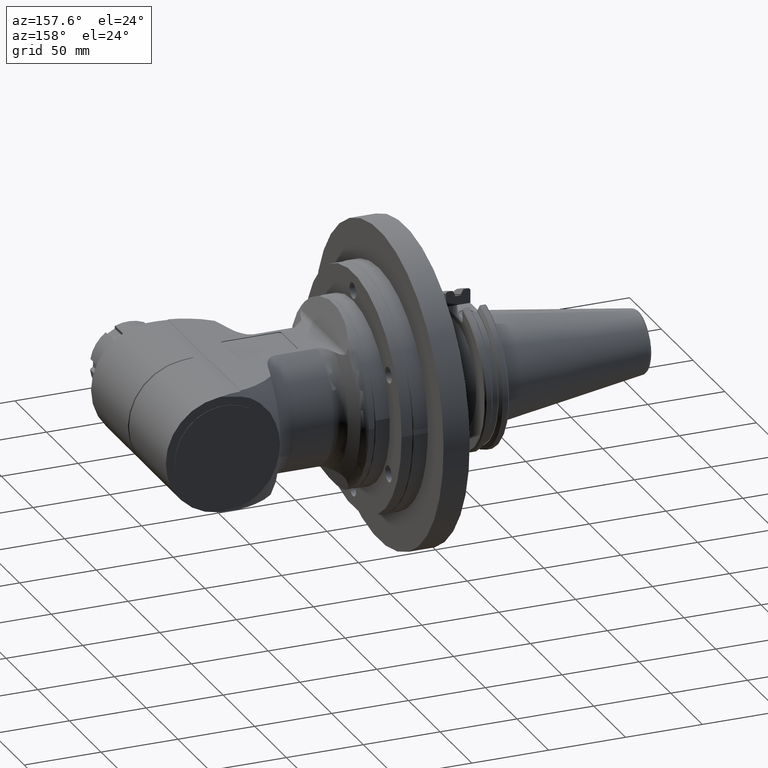
[diagram: clean part render]
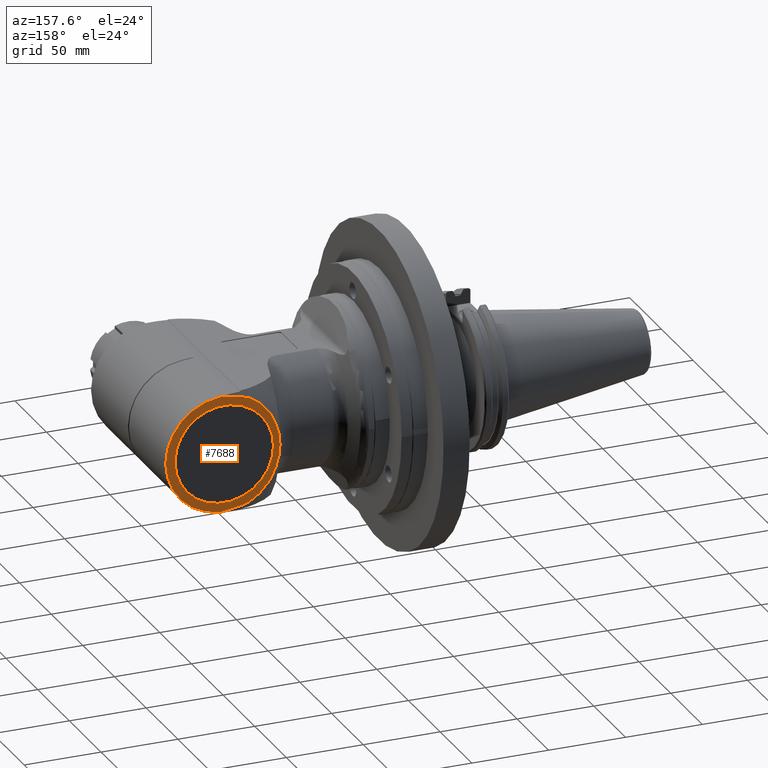
[diagram: same view with one face highlighted and labeled with its STEP entity id]
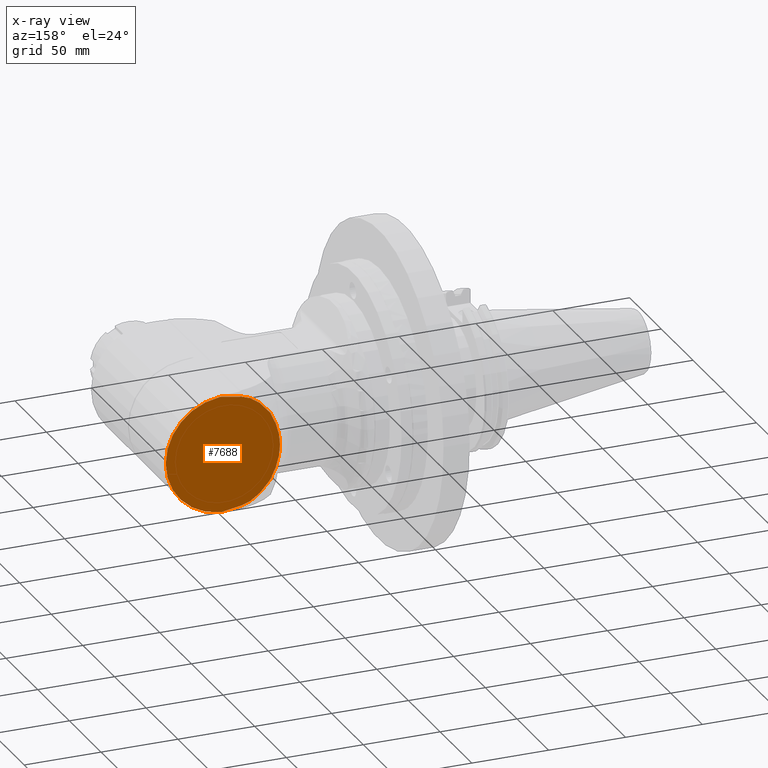
[diagram: x-ray of the same camera — body ghosted, the highlighted face saturated]
A machine part, auxiliary view. The second image highlights one B-rep face of the part: STEP entity #7688.
The next image is the same camera in x-ray: the body ghosted, the highlighted face saturated — about 0% of this face is hidden behind the body in this view.
In plain terms, the highlighted planar face has unit normal (0, -1, -0).
Its self-contained STEP definition (entity closure, byte-faithful):
#546=FACE_OUTER_BOUND('',#964,.T.);
#964=EDGE_LOOP('',(#5692,#5693,#5694,#5695,#5696,#5697,#5698,#5699,#5700,
#5701,#5702,#5703,#5704));
#1458=CIRCLE('',#8314,38.);
#1810=LINE('',#12130,#2419);
#1812=LINE('',#12143,#2421);
#2419=VECTOR('',#9528,10.);
#2421=VECTOR('',#9536,10.);
#2899=(
BOUNDED_CURVE()
B_SPLINE_CURVE(2,(#11565,#11566,#11567),.UNSPECIFIED.,.F.,.F.)
B_SPLINE_CURVE_WITH_KNOTS((3,3),(2.93448085738613,4.30098563059616),
 .UNSPECIFIED.)
CURVE()
GEOMETRIC_REPRESENTATION_ITEM()
RATIONAL_B_SPLINE_CURVE((1.00188573708598,1.00205643421679,1.00197718661706))
REPRESENTATION_ITEM('')
);
#2900=(
BOUNDED_CURVE()
B_SPLINE_CURVE(2,(#11571,#11572,#11573),.UNSPECIFIED.,.F.,.F.)
B_SPLINE_CURVE_WITH_KNOTS((3,3),(2.71811370431364,3.37089348317841),
 .UNSPECIFIED.)
CURVE()
GEOMETRIC_REPRESENTATION_ITEM()
RATIONAL_B_SPLINE_CURVE((1.00705525668742,1.00746944687986,1.0076756583646))
REPRESENTATION_ITEM('')
);
#2935=(
BOUNDED_CURVE()
B_SPLINE_CURVE(2,(#12152,#12153,#12154),.UNSPECIFIED.,.F.,.F.)
B_SPLINE_CURVE_WITH_KNOTS((3,3),(-6.20125849485431,-5.31660579783933),
 .UNSPECIFIED.)
CURVE()
GEOMETRIC_REPRESENTATION_ITEM()
RATIONAL_B_SPLINE_CURVE((1.02211110432321,1.02410051584497,1.02507233728091))
REPRESENTATION_ITEM('')
);
#2936=(
BOUNDED_CURVE()
B_SPLINE_CURVE(2,(#12156,#12157,#12158),.UNSPECIFIED.,.F.,.F.)
B_SPLINE_CURVE_WITH_KNOTS((3,3),(-4.30098563059561,-2.9344808573867),
 .UNSPECIFIED.)
CURVE()
GEOMETRIC_REPRESENTATION_ITEM()
RATIONAL_B_SPLINE_CURVE((1.00197718661707,1.0020564342168,1.00188573708599))
REPRESENTATION_ITEM('')
);
#2937=(
BOUNDED_CURVE()
B_SPLINE_CURVE(2,(#12160,#12161,#12162),.UNSPECIFIED.,.F.,.F.)
B_SPLINE_CURVE_WITH_KNOTS((3,3),(-3.37089348317868,-2.71811370431348),
 .UNSPECIFIED.)
CURVE()
GEOMETRIC_REPRESENTATION_ITEM()
RATIONAL_B_SPLINE_CURVE((1.0076756583646,1.00746944687986,1.00705525668742))
REPRESENTATION_ITEM('')
);
#2938=(
BOUNDED_CURVE()
B_SPLINE_CURVE(2,(#12164,#12165,#12166),.UNSPECIFIED.,.F.,.F.)
B_SPLINE_CURVE_WITH_KNOTS((3,3),(-3.62687932288115,-2.74222662586964),
 .UNSPECIFIED.)
CURVE()
GEOMETRIC_REPRESENTATION_ITEM()
RATIONAL_B_SPLINE_CURVE((1.02507233728091,1.02410051584497,1.02211110432322))
REPRESENTATION_ITEM('')
);
#2939=(
BOUNDED_CURVE()
B_SPLINE_CURVE(2,(#12168,#12169,#12170),.UNSPECIFIED.,.F.,.F.)
B_SPLINE_CURVE_WITH_KNOTS((3,3),(-3.71365839798047,-2.3794494730781),
 .UNSPECIFIED.)
CURVE()
GEOMETRIC_REPRESENTATION_ITEM()
RATIONAL_B_SPLINE_CURVE((1.04614546941561,1.04271614922782,1.03579468905903))
REPRESENTATION_ITEM('')
);
#2940=(
BOUNDED_CURVE()
B_SPLINE_CURVE(2,(#12172,#12173,#12174),.UNSPECIFIED.,.F.,.F.)
B_SPLINE_CURVE_WITH_KNOTS((3,3),(-15.527399004134,-11.5955866176865),
 .UNSPECIFIED.)
CURVE()
GEOMETRIC_REPRESENTATION_ITEM()
RATIONAL_B_SPLINE_CURVE((1.35306260130723,1.39892913016397,1.39892913016397))
REPRESENTATION_ITEM('')
);
#2941=(
BOUNDED_CURVE()
B_SPLINE_CURVE(2,(#12176,#12177,#12178),.UNSPECIFIED.,.F.,.F.)
B_SPLINE_CURVE_WITH_KNOTS((3,3),(-11.5955866176865,-7.66377423123892),
 .UNSPECIFIED.)
CURVE()
GEOMETRIC_REPRESENTATION_ITEM()
RATIONAL_B_SPLINE_CURVE((1.39892913016397,1.39892913016397,1.35306260130723))
REPRESENTATION_ITEM('')
);
#2942=(
BOUNDED_CURVE()
B_SPLINE_CURVE(2,(#12179,#12180,#12181),.UNSPECIFIED.,.F.,.F.)
B_SPLINE_CURVE_WITH_KNOTS((3,3),(-7.66828324306775,-6.33407431816759),
 .UNSPECIFIED.)
CURVE()
GEOMETRIC_REPRESENTATION_ITEM()
RATIONAL_B_SPLINE_CURVE((1.03579468905905,1.04271614922784,1.04614546941562))
REPRESENTATION_ITEM('')
);
#3164=VERTEX_POINT('',#11560);
#3165=VERTEX_POINT('',#11564);
#3166=VERTEX_POINT('',#11570);
#3263=VERTEX_POINT('',#12128);
#3264=VERTEX_POINT('',#12135);
#3265=VERTEX_POINT('',#12139);
#3266=VERTEX_POINT('',#12151);
#3267=VERTEX_POINT('',#12155);
#3268=VERTEX_POINT('',#12159);
#3269=VERTEX_POINT('',#12163);
#3270=VERTEX_POINT('',#12167);
#3271=VERTEX_POINT('',#12171);
#3272=VERTEX_POINT('',#12175);
#4088=EDGE_CURVE('',#3165,#3164,#2899,.T.);
#4090=EDGE_CURVE('',#3166,#3165,#2900,.T.);
#4222=EDGE_CURVE('',#3164,#3263,#1810,.T.);
#4225=EDGE_CURVE('',#3263,#3264,#1458,.T.);
#4227=EDGE_CURVE('',#3264,#3265,#1812,.T.);
#4230=EDGE_CURVE('',#3266,#3166,#2935,.T.);
#4231=EDGE_CURVE('',#3265,#3267,#2936,.T.);
#4232=EDGE_CURVE('',#3267,#3268,#2937,.T.);
#4233=EDGE_CURVE('',#3268,#3269,#2938,.T.);
#4234=EDGE_CURVE('',#3269,#3270,#2939,.T.);
#4235=EDGE_CURVE('',#3270,#3271,#2940,.T.);
#4236=EDGE_CURVE('',#3271,#3272,#2941,.T.);
#4237=EDGE_CURVE('',#3272,#3266,#2942,.T.);
#5692=ORIENTED_EDGE('',*,*,#4230,.T.);
#5693=ORIENTED_EDGE('',*,*,#4090,.T.);
#5694=ORIENTED_EDGE('',*,*,#4088,.T.);
#5695=ORIENTED_EDGE('',*,*,#4222,.T.);
#5696=ORIENTED_EDGE('',*,*,#4225,.T.);
#5697=ORIENTED_EDGE('',*,*,#4227,.T.);
#5698=ORIENTED_EDGE('',*,*,#4231,.T.);
#5699=ORIENTED_EDGE('',*,*,#4232,.T.);
#5700=ORIENTED_EDGE('',*,*,#4233,.T.);
#5701=ORIENTED_EDGE('',*,*,#4234,.T.);
#5702=ORIENTED_EDGE('',*,*,#4235,.T.);
#5703=ORIENTED_EDGE('',*,*,#4236,.T.);
#5704=ORIENTED_EDGE('',*,*,#4237,.T.);
#7421=PLANE('',#8319);
#7688=ADVANCED_FACE('',(#546),#7421,.F.);
#8314=AXIS2_PLACEMENT_3D('',#12137,#9532,#9533);
#8319=AXIS2_PLACEMENT_3D('',#12150,#9543,#9544);
#9528=DIRECTION('',(0.996194698091745,0.,-0.0871557427476639));
#9532=DIRECTION('center_axis',(0.,1.,0.));
#9533=DIRECTION('ref_axis',(1.,0.,0.));
#9536=DIRECTION('',(-0.996194698091745,0.,-0.0871557427476639));
#9543=DIRECTION('center_axis',(0.,-1.,0.));
#9544=DIRECTION('ref_axis',(0.,0.,1.));
#11560=CARTESIAN_POINT('',(1.94584509722469,59.0000000004343,37.9749144396658));
#11564=CARTESIAN_POINT('',(-11.3674698918709,58.9999999973178,35.7770876557279));
#11565=CARTESIAN_POINT('Ctrl Pts',(-11.3674698421929,59.,35.7770876568083));
#11566=CARTESIAN_POINT('Ctrl Pts',(-4.90918231300697,59.,36.866803498297));
#11567=CARTESIAN_POINT('Ctrl Pts',(1.94584509177401,59.,37.9749144401427));
#11570=CARTESIAN_POINT('',(-17.0387513415078,58.9999999586062,33.8082832713517));
#11571=CARTESIAN_POINT('Ctrl Pts',(-17.0387509172176,59.,33.8082833081779));
#11572=CARTESIAN_POINT('Ctrl Pts',(-14.2833402187762,59.,34.7855000662071));
#11573=CARTESIAN_POINT('Ctrl Pts',(-11.3674698922587,59.,35.7770876568681));
#12128=CARTESIAN_POINT('',(3.31191822440001,59.,37.85539852749));
#12130=CARTESIAN_POINT('',(-74.8381319614824,59.,44.6926419727377));
#12135=CARTESIAN_POINT('',(3.31191822440001,59.,-37.85539852749));
#12137=CARTESIAN_POINT('Origin',(0.,59.,0.));
#12139=CARTESIAN_POINT('',(1.94584509231204,59.,-37.9749144400951));
#12143=CARTESIAN_POINT('',(-76.2225717116549,59.,-44.813764756212));
#12150=CARTESIAN_POINT('Origin',(-152.3000024,59.,-91.286499));
#12151=CARTESIAN_POINT('',(-23.19411416562,58.999999231098,29.5804042855361));
#12152=CARTESIAN_POINT('Ctrl Pts',(-23.1941098618789,59.,29.5804054212926));
#12153=CARTESIAN_POINT('Ctrl Pts',(-20.3217046407504,59.,31.6627930677733));
#12154=CARTESIAN_POINT('Ctrl Pts',(-17.0387513469454,59.,33.808283279672));
#12155=CARTESIAN_POINT('',(-11.3674698918686,58.9999999973176,-35.7770876557292));
#12156=CARTESIAN_POINT('Ctrl Pts',(1.945845091767,59.,-37.9749144401427));
#12157=CARTESIAN_POINT('Ctrl Pts',(-4.909182313008,59.,-36.866803498298));
#12158=CARTESIAN_POINT('Ctrl Pts',(-11.3674698421884,59.,-35.7770876568102));
#12159=CARTESIAN_POINT('',(-17.0387513415085,58.9999999586063,-33.8082832713513));
#12160=CARTESIAN_POINT('Ctrl Pts',(-11.3674698922562,59.,-35.777087656869));
#12161=CARTESIAN_POINT('Ctrl Pts',(-14.2833402187758,59.,-34.7855000662073));
#12162=CARTESIAN_POINT('Ctrl Pts',(-17.038750917219,59.,-33.8082833081774));
#12163=CARTESIAN_POINT('',(-23.1941141656086,58.9999992310961,-29.5804042855492));
#12164=CARTESIAN_POINT('Ctrl Pts',(-17.0387513469461,59.,-33.8082832796716));
#12165=CARTESIAN_POINT('Ctrl Pts',(-20.3217046407382,59.,-31.6627930677814));
#12166=CARTESIAN_POINT('Ctrl Pts',(-23.194109861857,59.,-29.5804054213085));
#12167=CARTESIAN_POINT('',(-29.93222915756,59.,-22.09072203437));
#12168=CARTESIAN_POINT('Ctrl Pts',(-23.1941138002907,59.,-29.5804039178034));
#12169=CARTESIAN_POINT('Ctrl Pts',(-27.0515132712692,59.,-25.7484735882902));
#12170=CARTESIAN_POINT('Ctrl Pts',(-29.9322291575599,59.,-22.0907220343699));
#12171=CARTESIAN_POINT('',(-36.33356727372,59.,-2.575930000515E-13));
#12172=CARTESIAN_POINT('Ctrl Pts',(-29.9322291577152,59.,-22.0907220340942));
#12173=CARTESIAN_POINT('Ctrl Pts',(-36.3335672737221,59.,-10.6832180328903));
#12174=CARTESIAN_POINT('Ctrl Pts',(-36.3335672737221,59.,-1.6761328200618E-13));
#12175=CARTESIAN_POINT('',(-29.93222915756,59.,22.09072203437));
#12176=CARTESIAN_POINT('Ctrl Pts',(-36.3335672737221,59.,-1.6761328200618E-13));
#12177=CARTESIAN_POINT('Ctrl Pts',(-36.3335672737222,59.,10.6832180328902));
#12178=CARTESIAN_POINT('Ctrl Pts',(-29.9322291577152,59.,22.0907220340942));
#12179=CARTESIAN_POINT('Ctrl Pts',(-29.9322291575599,59.,22.09072203437));
#12180=CARTESIAN_POINT('Ctrl Pts',(-27.0515132712738,59.,25.7484735882845));
#12181=CARTESIAN_POINT('Ctrl Pts',(-23.1941138003029,59.,29.5804039177911));